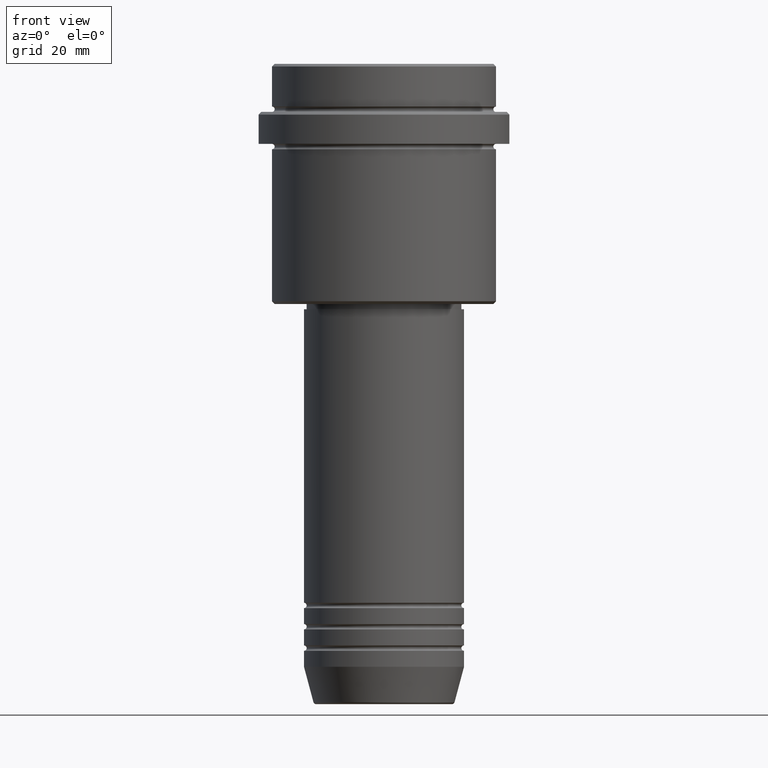
[diagram: clean part render]
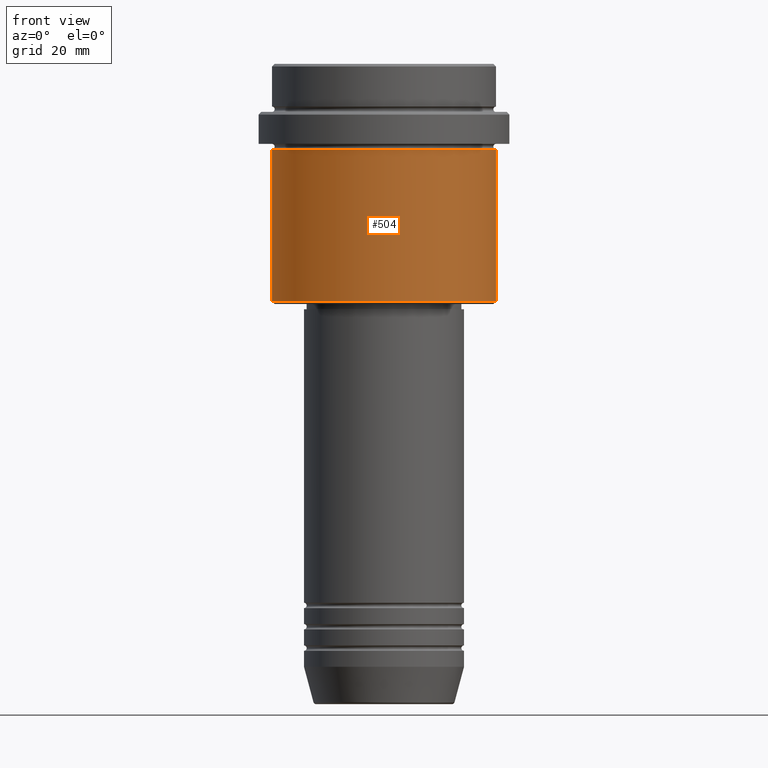
[diagram: same view with one face highlighted and labeled with its STEP entity id]
A machine part, front view. The second image highlights one B-rep face of the part: STEP entity #504.
In plain terms, the highlighted cylindrical surface (partial cylindrical patch) has radius 21 mm, axis along (-0, -0, 1).
Its self-contained STEP definition (entity closure, byte-faithful):
#21 = CIRCLE ( 'NONE', #492, 21.00000000000000000 ) ;
#65 = VERTEX_POINT ( 'NONE', #382 ) ;
#125 = CARTESIAN_POINT ( 'NONE',  ( 21.00000000000000000, 0.000000000000000000, 0.000000000000000000 ) ) ;
#149 = EDGE_CURVE ( 'NONE', #781, #464, #589, .T. ) ;
#203 = AXIS2_PLACEMENT_3D ( 'NONE', #255, #685, #1235 ) ;
#255 = CARTESIAN_POINT ( 'NONE',  ( 0.000000000000000000, 0.000000000000000000, -16.00000000000000355 ) ) ;
#280 = EDGE_CURVE ( 'NONE', #608, #65, #1111, .T. ) ;
#319 = DIRECTION ( 'NONE',  ( 1.000000000000000000, 0.000000000000000000, 0.000000000000000000 ) ) ;
#325 = CARTESIAN_POINT ( 'NONE',  ( 21.00000000000000000, 0.000000000000000000, -44.50000000000000000 ) ) ;
#351 = VECTOR ( 'NONE', #1047, 1000.000000000000000 ) ;
#382 = CARTESIAN_POINT ( 'NONE',  ( 21.00000000000000000, 0.000000000000000000, -16.00000000000000355 ) ) ;
#441 = CARTESIAN_POINT ( 'NONE',  ( 0.000000000000000000, 0.000000000000000000, -44.50000000000000000 ) ) ;
#464 = VERTEX_POINT ( 'NONE', #1269 ) ;
#492 = AXIS2_PLACEMENT_3D ( 'NONE', #441, #648, #1100 ) ;
#504 = ADVANCED_FACE ( 'NONE', ( #1312 ), #872, .T. ) ;
#525 = CARTESIAN_POINT ( 'NONE',  ( 0.000000000000000000, 0.000000000000000000, 0.000000000000000000 ) ) ;
#539 = DIRECTION ( 'NONE',  ( -0.000000000000000000, -0.000000000000000000, 1.000000000000000000 ) ) ;
#589 = LINE ( 'NONE', #714, #351 ) ;
#608 = VERTEX_POINT ( 'NONE', #325 ) ;
#648 = DIRECTION ( 'NONE',  ( -0.000000000000000000, -0.000000000000000000, 1.000000000000000000 ) ) ;
#663 = ORIENTED_EDGE ( 'NONE', *, *, #747, .T. ) ;
#672 = ORIENTED_EDGE ( 'NONE', *, *, #280, .T. ) ;
#685 = DIRECTION ( 'NONE',  ( -0.000000000000000000, -0.000000000000000000, 1.000000000000000000 ) ) ;
#714 = CARTESIAN_POINT ( 'NONE',  ( -21.00000000000000000, 2.571758278209441661E-15, 0.000000000000000000 ) ) ;
#726 = ORIENTED_EDGE ( 'NONE', *, *, #1299, .F. ) ;
#735 = CARTESIAN_POINT ( 'NONE',  ( -21.00000000000000000, 2.571758278209441661E-15, -44.50000000000000000 ) ) ;
#747 = EDGE_CURVE ( 'NONE', #781, #608, #21, .T. ) ;
#770 = CIRCLE ( 'NONE', #203, 21.00000000000000000 ) ;
#781 = VERTEX_POINT ( 'NONE', #735 ) ;
#851 = AXIS2_PLACEMENT_3D ( 'NONE', #525, #1206, #319 ) ;
#872 = CYLINDRICAL_SURFACE ( 'NONE', #851, 21.00000000000000000 ) ;
#998 = ORIENTED_EDGE ( 'NONE', *, *, #149, .F. ) ;
#1047 = DIRECTION ( 'NONE',  ( -0.000000000000000000, -0.000000000000000000, 1.000000000000000000 ) ) ;
#1090 = VECTOR ( 'NONE', #539, 1000.000000000000000 ) ;
#1100 = DIRECTION ( 'NONE',  ( -1.000000000000000000, 0.000000000000000000, 0.000000000000000000 ) ) ;
#1111 = LINE ( 'NONE', #125, #1090 ) ;
#1206 = DIRECTION ( 'NONE',  ( -0.000000000000000000, -0.000000000000000000, 1.000000000000000000 ) ) ;
#1235 = DIRECTION ( 'NONE',  ( 1.000000000000000000, 0.000000000000000000, 0.000000000000000000 ) ) ;
#1269 = CARTESIAN_POINT ( 'NONE',  ( -21.00000000000000000, 2.571758278209441661E-15, -16.00000000000000355 ) ) ;
#1299 = EDGE_CURVE ( 'NONE', #464, #65, #770, .T. ) ;
#1300 = EDGE_LOOP ( 'NONE', ( #998, #663, #672, #726 ) ) ;
#1312 = FACE_OUTER_BOUND ( 'NONE', #1300, .T. ) ;